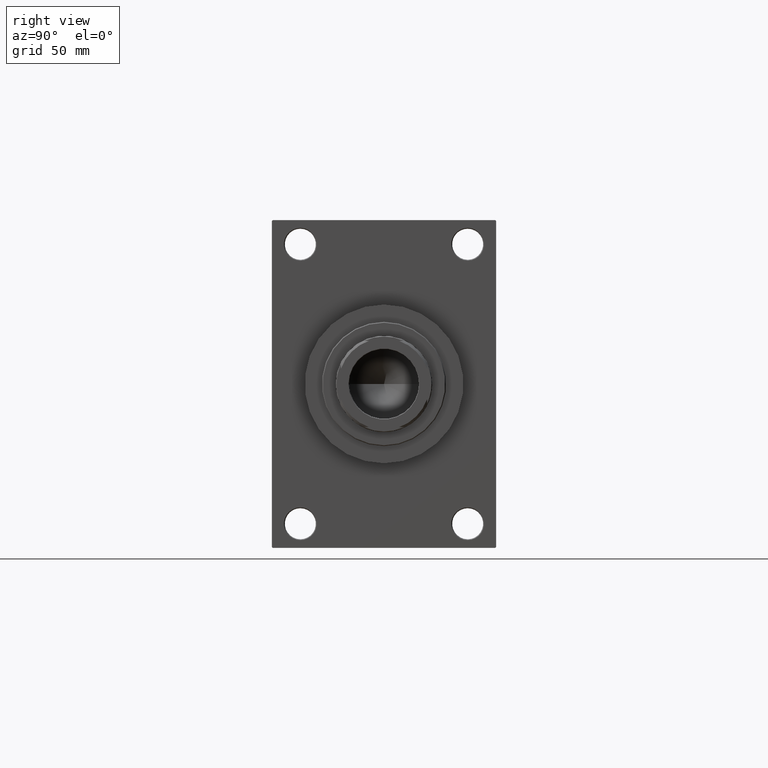
[diagram: clean part render]
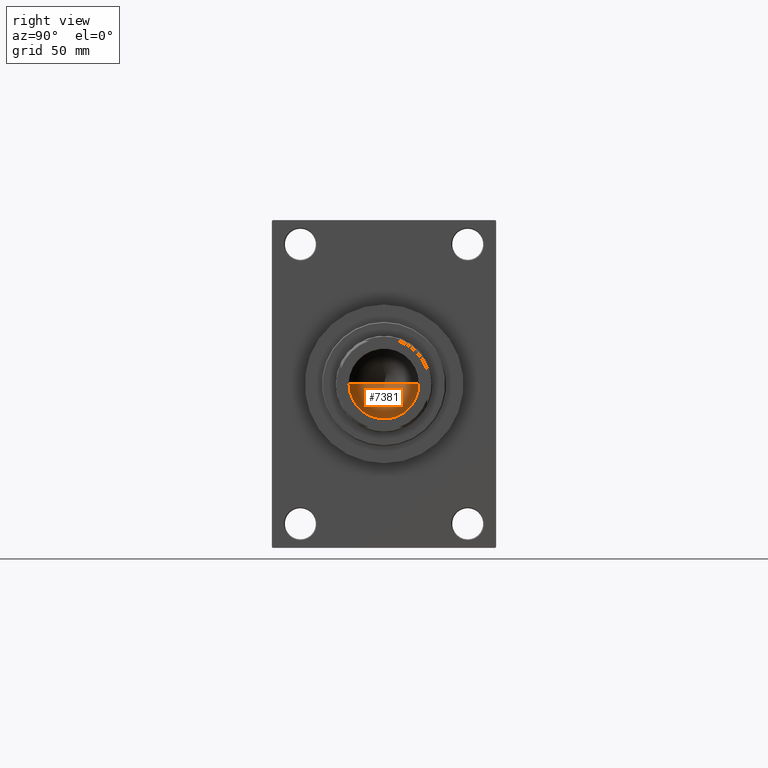
[diagram: same view with one face highlighted and labeled with its STEP entity id]
A machine part, right view. The second image highlights one B-rep face of the part: STEP entity #7381.
In plain terms, the highlighted conical surface has half-angle 59 deg.
Its self-contained STEP definition (entity closure, byte-faithful):
#2270 = ORIENTED_EDGE ( 'NONE', *, *, #31018, .F. ) ;
#2790 = VERTEX_POINT ( 'NONE', #12478 ) ;
#4408 = EDGE_CURVE ( 'NONE', #45293, #19792, #13627, .T. ) ;
#4955 = DIRECTION ( 'NONE',  ( 1.000000000000000000, 0.000000000000000000, 0.000000000000000000 ) ) ;
#5025 = DIRECTION ( 'NONE',  ( 1.000000000000000000, 0.000000000000000000, 0.000000000000000000 ) ) ;
#5195 = DIRECTION ( 'NONE',  ( -0.000000000000000000, -0.000000000000000000, 1.000000000000000000 ) ) ;
#6389 = CARTESIAN_POINT ( 'NONE',  ( 20.24999999999998934, 0.000000000000000000, 230.0000000000000284 ) ) ;
#7381 = ADVANCED_FACE ( 'NONE', ( #45970 ), #24863, .F. ) ;
#9123 = DIRECTION ( 'NONE',  ( -0.000000000000000000, -0.000000000000000000, 1.000000000000000000 ) ) ;
#9325 = CARTESIAN_POINT ( 'NONE',  ( 20.24999999999998934, 0.000000000000000000, 230.0000000000000284 ) ) ;
#11342 = CARTESIAN_POINT ( 'NONE',  ( -20.24999999999998934, 2.479909768273389117E-15, 230.0000000000000284 ) ) ;
#12478 = CARTESIAN_POINT ( 'NONE',  ( -20.24999999999998934, 2.479909768273389117E-15, 230.0000000000000284 ) ) ;
#13595 = EDGE_CURVE ( 'NONE', #19792, #2790, #31240, .T. ) ;
#13627 = LINE ( 'NONE', #6389, #34015 ) ;
#13958 = ORIENTED_EDGE ( 'NONE', *, *, #13595, .T. ) ;
#17167 = AXIS2_PLACEMENT_3D ( 'NONE', #45265, #5195, #4955 ) ;
#17728 = DIRECTION ( 'NONE',  ( 0.8571673007021112234, 0.000000000000000000, 0.5150380749100560429 ) ) ;
#18455 = CARTESIAN_POINT ( 'NONE',  ( -1.584115414415908206E-14, 0.000000000000000000, 217.8325724646919070 ) ) ;
#19779 = VECTOR ( 'NONE', #37164, 1000.000000000000000 ) ;
#19792 = VERTEX_POINT ( 'NONE', #9325 ) ;
#24863 = CONICAL_SURFACE ( 'NONE', #17167, 20.24999999999998934, 1.029744258676652313 ) ;
#28901 = AXIS2_PLACEMENT_3D ( 'NONE', #41712, #9123, #5025 ) ;
#31018 = EDGE_CURVE ( 'NONE', #45293, #2790, #36454, .T. ) ;
#31240 = CIRCLE ( 'NONE', #28901, 20.24999999999998934 ) ;
#32350 = EDGE_LOOP ( 'NONE', ( #2270, #37996, #13958 ) ) ;
#34015 = VECTOR ( 'NONE', #17728, 1000.000000000000000 ) ;
#36454 = LINE ( 'NONE', #11342, #19779 ) ;
#37164 = DIRECTION ( 'NONE',  ( -0.8571673007021112234, 1.049727191138617340E-16, 0.5150380749100560429 ) ) ;
#37996 = ORIENTED_EDGE ( 'NONE', *, *, #4408, .T. ) ;
#41712 = CARTESIAN_POINT ( 'NONE',  ( 0.000000000000000000, 0.000000000000000000, 230.0000000000000284 ) ) ;
#45265 = CARTESIAN_POINT ( 'NONE',  ( 0.000000000000000000, 0.000000000000000000, 230.0000000000000284 ) ) ;
#45293 = VERTEX_POINT ( 'NONE', #18455 ) ;
#45970 = FACE_OUTER_BOUND ( 'NONE', #32350, .T. ) ;